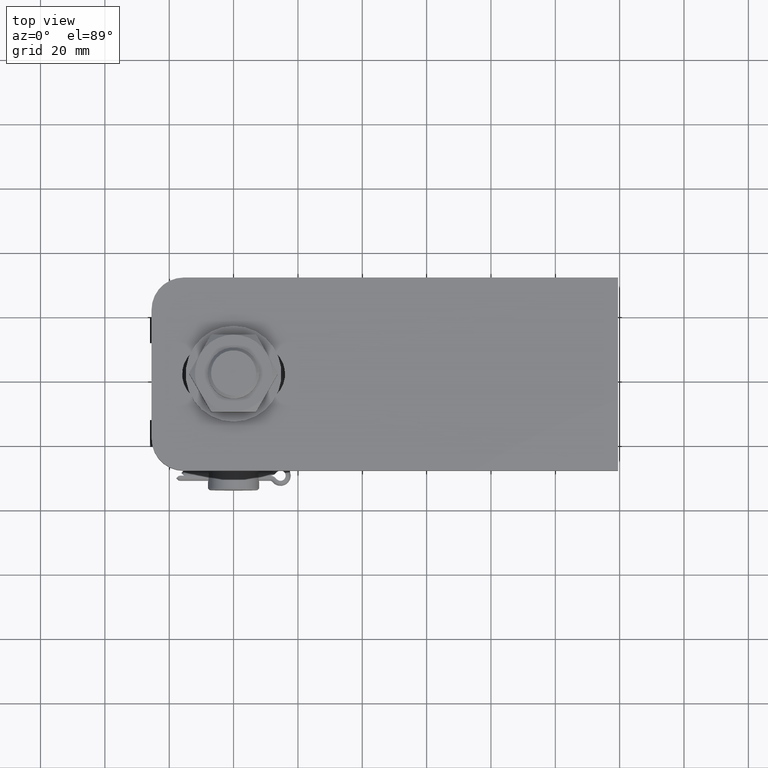
[diagram: clean part render]
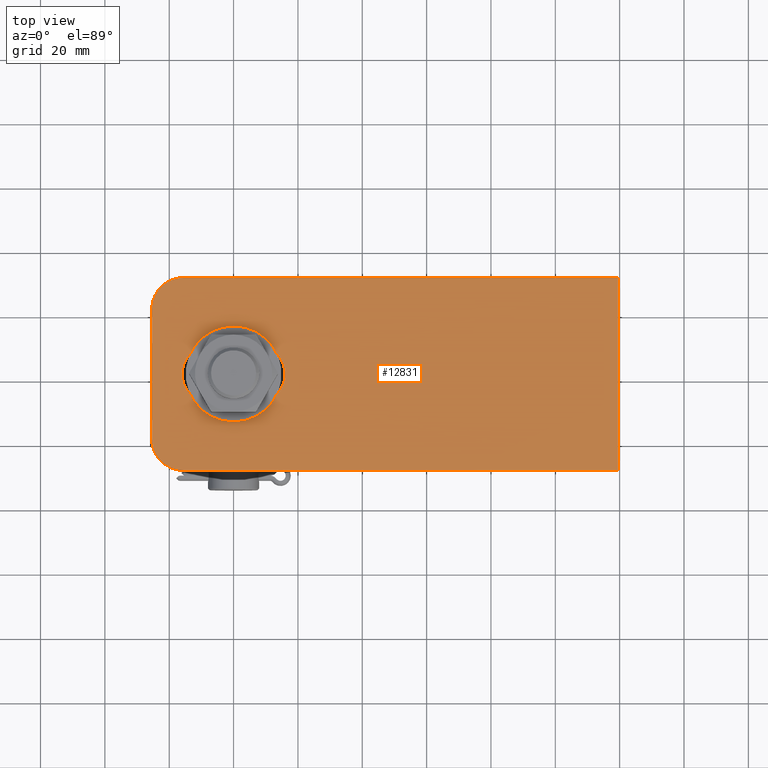
[diagram: same view with one face highlighted and labeled with its STEP entity id]
A machine part, top view. The second image highlights one B-rep face of the part: STEP entity #12831.
In plain terms, the highlighted planar face has unit normal (0, 0, 1).
Its self-contained STEP definition (entity closure, byte-faithful):
#135 = EDGE_CURVE ( 'NONE', #12911, #9460, #13320, .T. ) ;
#244 = LINE ( 'NONE', #3264, #14313 ) ;
#403 = CARTESIAN_POINT ( 'NONE',  ( -62.49999999999997868, -20.00000000000000355, 4.000000000000000000 ) ) ;
#689 = VERTEX_POINT ( 'NONE', #6676 ) ;
#717 = DIRECTION ( 'NONE',  ( -1.000000000000000000, -0.000000000000000000, -0.000000000000000000 ) ) ;
#784 = VERTEX_POINT ( 'NONE', #4620 ) ;
#984 = VECTOR ( 'NONE', #717, 1000.000000000000000 ) ;
#1008 = VERTEX_POINT ( 'NONE', #3691 ) ;
#1149 = EDGE_CURVE ( 'NONE', #689, #784, #4103, .T. ) ;
#1267 = DIRECTION ( 'NONE',  ( -1.000000000000000000, -0.000000000000000000, -0.000000000000000000 ) ) ;
#1317 = CARTESIAN_POINT ( 'NONE',  ( -53.99999999999999289, 9.000000000000001776, 4.000000000000000000 ) ) ;
#1363 = DIRECTION ( 'NONE',  ( 2.312964634635742957E-16, -1.000000000000000000, 0.000000000000000000 ) ) ;
#1378 = CARTESIAN_POINT ( 'NONE',  ( -53.99999999999999289, -9.000000000000001776, 4.000000000000000000 ) ) ;
#1531 = CARTESIAN_POINT ( 'NONE',  ( -39.99999999999999289, 9.000000000000001776, 4.000000000000000000 ) ) ;
#1569 = DIRECTION ( 'NONE',  ( -0.000000000000000000, 0.000000000000000000, 1.000000000000000000 ) ) ;
#1691 = EDGE_LOOP ( 'NONE', ( #8422, #10170, #14149, #5733, #4566, #12108 ) ) ;
#1881 = LINE ( 'NONE', #1957, #4811 ) ;
#1904 = ORIENTED_EDGE ( 'NONE', *, *, #2766, .F. ) ;
#1957 = CARTESIAN_POINT ( 'NONE',  ( 72.50000000000000000, 29.99999999999999645, 4.000000000000000000 ) ) ;
#1984 = DIRECTION ( 'NONE',  ( 1.000000000000000000, 0.000000000000000000, 0.000000000000000000 ) ) ;
#1991 = VERTEX_POINT ( 'NONE', #11527 ) ;
#2226 = VECTOR ( 'NONE', #1267, 1000.000000000000000 ) ;
#2384 = ORIENTED_EDGE ( 'NONE', *, *, #1149, .F. ) ;
#2596 = AXIS2_PLACEMENT_3D ( 'NONE', #403, #1569, #6076 ) ;
#2643 = CARTESIAN_POINT ( 'NONE',  ( -39.99999999999999289, 0.000000000000000000, 4.000000000000000000 ) ) ;
#2703 = LINE ( 'NONE', #2889, #984 ) ;
#2766 = EDGE_CURVE ( 'NONE', #9460, #689, #3606, .T. ) ;
#2889 = CARTESIAN_POINT ( 'NONE',  ( -72.50000000000000000, 29.99999999999999645, 4.000000000000000000 ) ) ;
#2963 = EDGE_CURVE ( 'NONE', #1991, #11597, #6385, .T. ) ;
#3116 = EDGE_CURVE ( 'NONE', #1008, #10108, #1881, .T. ) ;
#3234 = AXIS2_PLACEMENT_3D ( 'NONE', #3803, #5855, #8088 ) ;
#3264 = CARTESIAN_POINT ( 'NONE',  ( -72.49999999999998579, -30.00000000000000355, 4.000000000000000000 ) ) ;
#3606 = LINE ( 'NONE', #1317, #2226 ) ;
#3691 = CARTESIAN_POINT ( 'NONE',  ( 72.50000000000000000, -30.00000000000000355, 4.000000000000000000 ) ) ;
#3800 = DIRECTION ( 'NONE',  ( 0.000000000000000000, 0.000000000000000000, 1.000000000000000000 ) ) ;
#3803 = CARTESIAN_POINT ( 'NONE',  ( 0.000000000000000000, 0.000000000000000000, 4.000000000000000000 ) ) ;
#4103 = CIRCLE ( 'NONE', #9459, 9.000000000000001776 ) ;
#4203 = CIRCLE ( 'NONE', #2596, 10.00000000000000178 ) ;
#4565 = AXIS2_PLACEMENT_3D ( 'NONE', #2643, #3800, #4915 ) ;
#4566 = ORIENTED_EDGE ( 'NONE', *, *, #4945, .T. ) ;
#4620 = CARTESIAN_POINT ( 'NONE',  ( -53.99999999999999289, -9.000000000000001776, 4.000000000000000000 ) ) ;
#4721 = EDGE_CURVE ( 'NONE', #784, #12911, #9682, .T. ) ;
#4811 = VECTOR ( 'NONE', #7540, 1000.000000000000000 ) ;
#4915 = DIRECTION ( 'NONE',  ( 1.000000000000000000, 0.000000000000000000, 0.000000000000000000 ) ) ;
#4945 = EDGE_CURVE ( 'NONE', #10108, #12244, #2703, .T. ) ;
#5733 = ORIENTED_EDGE ( 'NONE', *, *, #3116, .T. ) ;
#5855 = DIRECTION ( 'NONE',  ( -0.000000000000000000, 0.000000000000000000, 1.000000000000000000 ) ) ;
#5883 = ORIENTED_EDGE ( 'NONE', *, *, #135, .F. ) ;
#6076 = DIRECTION ( 'NONE',  ( 1.000000000000000000, 0.000000000000000000, 0.000000000000000000 ) ) ;
#6385 = LINE ( 'NONE', #13572, #11465 ) ;
#6529 = CARTESIAN_POINT ( 'NONE',  ( -62.49999999999997868, -30.00000000000000355, 4.000000000000000000 ) ) ;
#6567 = CARTESIAN_POINT ( 'NONE',  ( -62.49999999999999289, 29.99999999999999645, 4.000000000000000000 ) ) ;
#6676 = CARTESIAN_POINT ( 'NONE',  ( -53.99999999999999289, 9.000000000000001776, 4.000000000000000000 ) ) ;
#7107 = ORIENTED_EDGE ( 'NONE', *, *, #4721, .F. ) ;
#7111 = DIRECTION ( 'NONE',  ( 0.000000000000000000, 0.000000000000000000, 1.000000000000000000 ) ) ;
#7540 = DIRECTION ( 'NONE',  ( -0.000000000000000000, 1.000000000000000000, -0.000000000000000000 ) ) ;
#7873 = EDGE_CURVE ( 'NONE', #11795, #1008, #244, .T. ) ;
#8088 = DIRECTION ( 'NONE',  ( 1.000000000000000000, 0.000000000000000000, 0.000000000000000000 ) ) ;
#8187 = CARTESIAN_POINT ( 'NONE',  ( -39.99999999999999289, -9.000000000000001776, 4.000000000000000000 ) ) ;
#8422 = ORIENTED_EDGE ( 'NONE', *, *, #2963, .T. ) ;
#9038 = DIRECTION ( 'NONE',  ( 1.000000000000000000, 0.000000000000000000, 0.000000000000000000 ) ) ;
#9459 = AXIS2_PLACEMENT_3D ( 'NONE', #11518, #7111, #10366 ) ;
#9460 = VERTEX_POINT ( 'NONE', #1531 ) ;
#9629 = DIRECTION ( 'NONE',  ( -0.000000000000000000, 0.000000000000000000, 1.000000000000000000 ) ) ;
#9682 = LINE ( 'NONE', #1378, #11956 ) ;
#10091 = EDGE_LOOP ( 'NONE', ( #7107, #2384, #1904, #5883 ) ) ;
#10099 = FACE_OUTER_BOUND ( 'NONE', #1691, .T. ) ;
#10108 = VERTEX_POINT ( 'NONE', #10132 ) ;
#10132 = CARTESIAN_POINT ( 'NONE',  ( 72.50000000000000000, 29.99999999999999645, 4.000000000000000000 ) ) ;
#10170 = ORIENTED_EDGE ( 'NONE', *, *, #14027, .T. ) ;
#10325 = PLANE ( 'NONE',  #3234 ) ;
#10366 = DIRECTION ( 'NONE',  ( 1.000000000000000000, 0.000000000000000000, 0.000000000000000000 ) ) ;
#10970 = CIRCLE ( 'NONE', #13660, 10.00000000000000178 ) ;
#11241 = CARTESIAN_POINT ( 'NONE',  ( -72.49999999999998579, -20.00000000000000711, 4.000000000000000000 ) ) ;
#11465 = VECTOR ( 'NONE', #1363, 1000.000000000000000 ) ;
#11518 = CARTESIAN_POINT ( 'NONE',  ( -53.99999999999999289, 0.000000000000000000, 4.000000000000000000 ) ) ;
#11527 = CARTESIAN_POINT ( 'NONE',  ( -72.50000000000000000, 19.99999999999999289, 4.000000000000000000 ) ) ;
#11597 = VERTEX_POINT ( 'NONE', #11241 ) ;
#11795 = VERTEX_POINT ( 'NONE', #6529 ) ;
#11799 = DIRECTION ( 'NONE',  ( 1.000000000000000000, 0.000000000000000000, 0.000000000000000000 ) ) ;
#11956 = VECTOR ( 'NONE', #9038, 1000.000000000000000 ) ;
#12108 = ORIENTED_EDGE ( 'NONE', *, *, #12524, .T. ) ;
#12244 = VERTEX_POINT ( 'NONE', #6567 ) ;
#12524 = EDGE_CURVE ( 'NONE', #12244, #1991, #10970, .T. ) ;
#12831 = ADVANCED_FACE ( 'NONE', ( #10099, #14420 ), #10325, .T. ) ;
#12911 = VERTEX_POINT ( 'NONE', #8187 ) ;
#13004 = CARTESIAN_POINT ( 'NONE',  ( -62.49999999999999289, 19.99999999999999645, 4.000000000000000000 ) ) ;
#13320 = CIRCLE ( 'NONE', #4565, 9.000000000000001776 ) ;
#13572 = CARTESIAN_POINT ( 'NONE',  ( -72.50000000000000000, 29.99999999999999645, 4.000000000000000000 ) ) ;
#13660 = AXIS2_PLACEMENT_3D ( 'NONE', #13004, #9629, #1984 ) ;
#14027 = EDGE_CURVE ( 'NONE', #11597, #11795, #4203, .T. ) ;
#14149 = ORIENTED_EDGE ( 'NONE', *, *, #7873, .T. ) ;
#14313 = VECTOR ( 'NONE', #11799, 1000.000000000000000 ) ;
#14420 = FACE_BOUND ( 'NONE', #10091, .T. ) ;